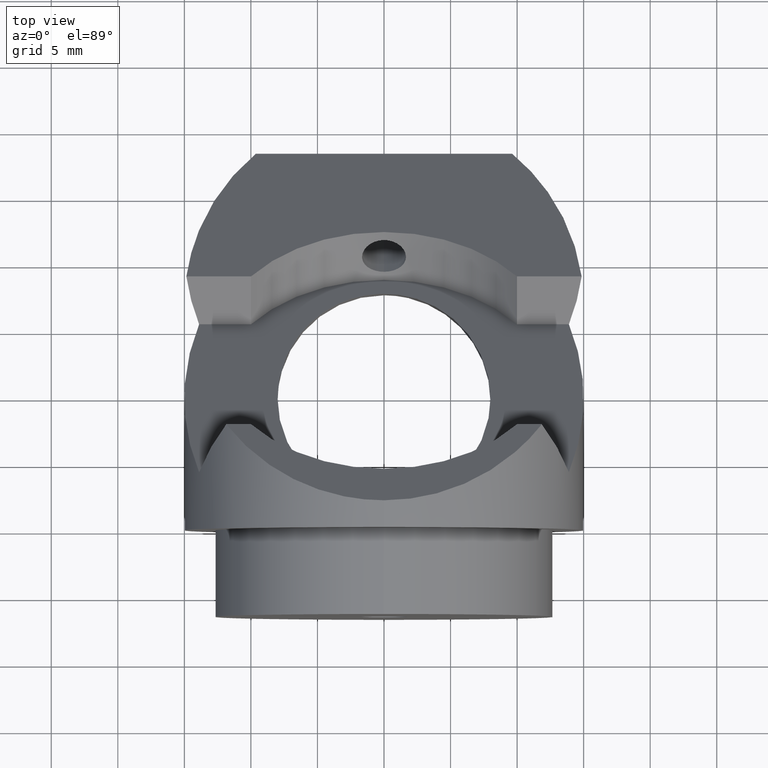
[diagram: clean part render]
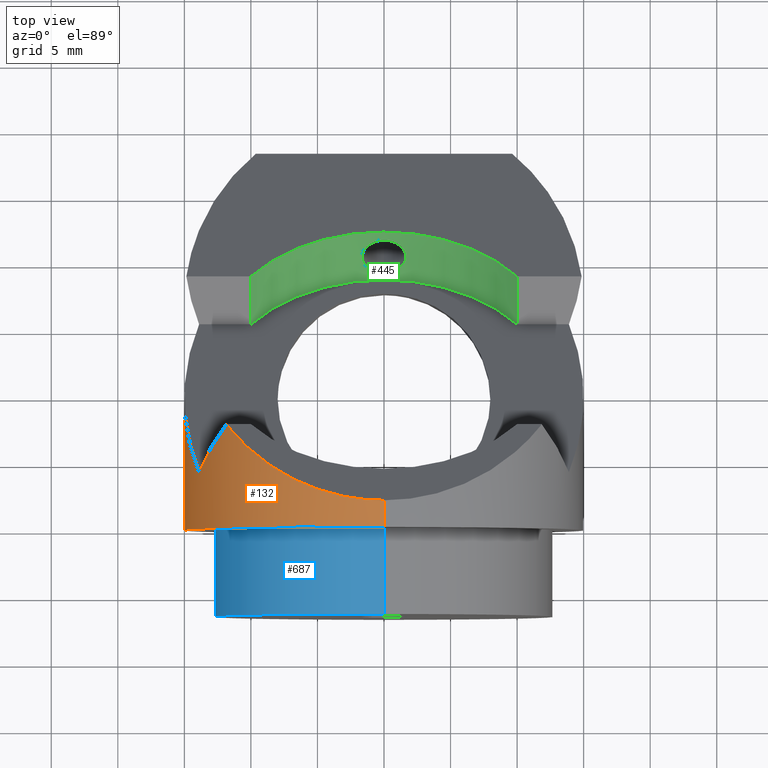
[diagram: same view with three faces highlighted in distinct colors, each labeled with its STEP entity id]
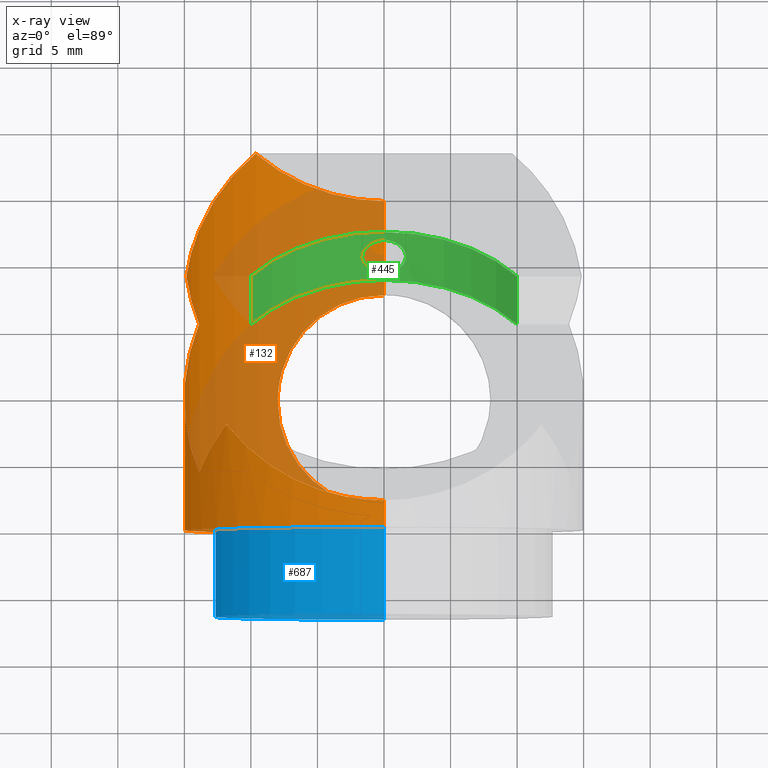
[diagram: x-ray of the same camera — body ghosted, the three highlighted faces saturated]
A machine part, top view with three faces highlighted in distinct colors.
The next image is the same camera in x-ray (body ghosted, the three faces saturated) — at least one of them is partly hidden behind the body in this view.
Their STEP definitions:

[orange] entity #132 — the highlighted cylindrical surface (partial cylindrical patch) has radius 15 mm, axis along (-0, -1, -0).
#6 = CARTESIAN_POINT ( 'NONE',  ( -0.5402986801607242400, 17.92893218813432600, -15.00000000000000000 ) ) ;
#14 = EDGE_CURVE ( 'NONE', #966, #573, #567, .T. ) ;
#17 = CARTESIAN_POINT ( 'NONE',  ( -1.069685864931536600, 17.87477445671359500, -14.97091841634727900 ) ) ;
#19 = CARTESIAN_POINT ( 'NONE',  ( -2.763774181441814900E-024, 1.928932188134118200, -15.00000000000000000 ) ) ;
#23 = CARTESIAN_POINT ( 'NONE',  ( -4.897071439797034700, 3.581471149409963100, -14.18533946087025700 ) ) ;
#24 =( BOUNDED_CURVE ( )  B_SPLINE_CURVE ( 3, ( #495, #734, #29, #100 ),
 .UNSPECIFIED., .F., .F. ) 
 B_SPLINE_CURVE_WITH_KNOTS ( ( 4, 4 ),
 ( 1.957484952950715000, 2.230428053079148000 ),
 .UNSPECIFIED. ) 
 CURVE ( )  GEOMETRIC_REPRESENTATION_ITEM ( )  RATIONAL_B_SPLINE_CURVE ( ( 1.000000000000000000, 0.9938014680113467200, 0.9938014680113467200, 1.000000000000000000 ) ) 
 REPRESENTATION_ITEM ( '' )  );
#25 = CARTESIAN_POINT ( 'NONE',  ( -14.84924240491746000, 19.12132034355941500, -2.121320343559593500 ) ) ;
#26 = CARTESIAN_POINT ( 'NONE',  ( -8.000000000000103000, 9.661999923300925300, -12.68857754044945800 ) ) ;
#29 = CARTESIAN_POINT ( 'NONE',  ( -12.69220912968829600, 6.725828052043423700, 8.110604362894134700 ) ) ;
#35 = ORIENTED_EDGE ( 'NONE', *, *, #640, .T. ) ;
#39 = CARTESIAN_POINT ( 'NONE',  ( -4.720855478036189500, 2.000000000000001800, 15.00000000000000000 ) ) ;
#57 = CARTESIAN_POINT ( 'NONE',  ( 1.836970198721029600E-015, 0.0000000000000000000, 15.00000000000000000 ) ) ;
#70 = CARTESIAN_POINT ( 'NONE',  ( -13.89244398944966500, 4.272077938641865000, 5.656854249492601700 ) ) ;
#73 = CARTESIAN_POINT ( 'NONE',  ( -2.622107537922459700, 17.50517929154395300, -14.77729834388254900 ) ) ;
#84 = LINE ( 'NONE', #991, #812 ) ;
#85 = CARTESIAN_POINT ( 'NONE',  ( -3.588620696134561200, 17.09808622551051400, -14.57277584346299200 ) ) ;
#87 = CARTESIAN_POINT ( 'NONE',  ( -7.724543757968519700, 12.02696702556041700, -12.85844599344674100 ) ) ;
#92 = CARTESIAN_POINT ( 'NONE',  ( -7.986389873771929400, 9.391158058453209300, -12.69718802926070500 ) ) ;
#94 = CARTESIAN_POINT ( 'NONE',  ( -6.336600760920594800, 5.038766614149111000, -13.59704935660367800 ) ) ;
#100 = CARTESIAN_POINT ( 'NONE',  ( -11.85326959112950500, 7.807611844574621400, 9.192388155425320000 ) ) ;
#102 = EDGE_CURVE ( 'NONE', #399, #656, #185, .T. ) ;
#115 = ORIENTED_EDGE ( 'NONE', *, *, #102, .F. ) ;
#119 = CARTESIAN_POINT ( 'NONE',  ( -13.89244398944976300, 15.58578643762660000, -5.656854249492376100 ) ) ;
#120 =( BOUNDED_CURVE ( )  B_SPLINE_CURVE ( 3, ( #167, #320, #248, #25 ),
 .UNSPECIFIED., .F., .F. ) 
 B_SPLINE_CURVE_WITH_KNOTS ( ( 4, 4 ),
 ( 3.838755787232007100, 4.570491925780528300 ),
 .UNSPECIFIED. ) 
 CURVE ( )  GEOMETRIC_REPRESENTATION_ITEM ( )  RATIONAL_B_SPLINE_CURVE ( ( 1.000000000000000000, 0.9558757016912029500, 0.9558757016912029500, 1.000000000000000000 ) ) 
 REPRESENTATION_ITEM ( '' )  );
#132 = ADVANCED_FACE ( 'NONE', ( #584 ), #283, .T. ) ;
#143 = CARTESIAN_POINT ( 'NONE',  ( -6.020570510678419800, 15.20330653662835600, -13.73990089893911700 ) ) ;
#147 = CARTESIAN_POINT ( 'NONE',  ( -15.38829925571960500, 7.945689558534887500, 1.983242629599501200 ) ) ;
#160 = CARTESIAN_POINT ( 'NONE',  ( -7.177967971487818000, 13.49920839242508400, -13.17307734203847900 ) ) ;
#162 = CARTESIAN_POINT ( 'NONE',  ( -3.576409944130032800, 2.753947597043895400, -14.57566637414122600 ) ) ;
#167 = CARTESIAN_POINT ( 'NONE',  ( -9.630680142128881000, 28.49999999999988300, -11.50000000000015800 ) ) ;
#170 = CARTESIAN_POINT ( 'NONE',  ( -7.892611762494417400, 8.596062843617303900, -12.75580203211171000 ) ) ;
#172 = CARTESIAN_POINT ( 'NONE',  ( -7.787422227111571600, 8.078009126603351600, -12.82029098626778900 ) ) ;
#176 = CARTESIAN_POINT ( 'NONE',  ( -5.294259466463342000, 3.909587927322553600, -14.04006382546804600 ) ) ;
#185 =( BOUNDED_CURVE ( )  B_SPLINE_CURVE ( 3, ( #672, #976, #516, #119 ),
 .UNSPECIFIED., .F., .F. ) 
 B_SPLINE_CURVE_WITH_KNOTS ( ( 4, 4 ),
 ( 4.854286034988851000, 5.099077606540491900 ),
 .UNSPECIFIED. ) 
 CURVE ( )  GEOMETRIC_REPRESENTATION_ITEM ( )  RATIONAL_B_SPLINE_CURVE ( ( 1.000000000000000000, 0.9950126547132646100, 0.9950126547132646100, 1.000000000000000000 ) ) 
 REPRESENTATION_ITEM ( '' )  );
#186 = VECTOR ( 'NONE', #939, 1000.000000000000000 ) ;
#193 = VERTEX_POINT ( 'NONE', #979 ) ;
#225 = CARTESIAN_POINT ( 'NONE',  ( -7.790209122528918500, 11.76812732826659400, -12.81859580687657800 ) ) ;
#230 = CARTESIAN_POINT ( 'NONE',  ( 0.0000000000000000000, 25.00000000000000700, -15.00000000000000000 ) ) ;
#239 = CARTESIAN_POINT ( 'NONE',  ( -9.630680142128881000, 28.49999999999988300, -11.50000000000015800 ) ) ;
#244 = CARTESIAN_POINT ( 'NONE',  ( -1.060651640871473000, 1.981678697479633700, -14.97166650715893400 ) ) ;
#248 = CARTESIAN_POINT ( 'NONE',  ( -14.31993811834982600, 22.82645034953319300, -5.826450349533404300 ) ) ;
#249 = CARTESIAN_POINT ( 'NONE',  ( -7.566662152314264300, 7.318334476416273700, -12.95198035539508700 ) ) ;
#250 = CIRCLE ( 'NONE', #566, 15.00000000000000000 ) ;
#259 = EDGE_CURVE ( 'NONE', #915, #366, #250, .T. ) ;
#283 = CYLINDRICAL_SURFACE ( 'NONE', #766, 15.00000000000000000 ) ;
#292 = CARTESIAN_POINT ( 'NONE',  ( 1.836970198721029600E-015, 2.000000000000001800, 15.00000000000000000 ) ) ;
#293 = CARTESIAN_POINT ( 'NONE',  ( 1.836970198721029600E-015, -7.664944013781219000, 15.00000000000000000 ) ) ;
#297 = CARTESIAN_POINT ( 'NONE',  ( -8.000000000000104800, 10.46358031276772700, -12.68857754044945800 ) ) ;
#300 = CARTESIAN_POINT ( 'NONE',  ( -3.558319546696726100, 25.00000000000001100, -15.00000000000000200 ) ) ;
#311 = EDGE_CURVE ( 'NONE', #559, #966, #24, .T. ) ;
#313 = CARTESIAN_POINT ( 'NONE',  ( -6.502563963584512900, 14.59619933070975000, -13.51822400401877500 ) ) ;
#314 = ORIENTED_EDGE ( 'NONE', *, *, #869, .F. ) ;
#316 = CARTESIAN_POINT ( 'NONE',  ( -2.610089792680260000, 2.362074172449627700, -14.77338439190168100 ) ) ;
#320 = CARTESIAN_POINT ( 'NONE',  ( -12.50011912809284600, 26.09698703815879700, -9.096987038159044300 ) ) ;
#326 = CARTESIAN_POINT ( 'NONE',  ( -14.84924240491746000, 19.12132034355941500, -2.121320343559593500 ) ) ;
#331 = ORIENTED_EDGE ( 'NONE', *, *, #712, .F. ) ;
#332 = ORIENTED_EDGE ( 'NONE', *, *, #530, .F. ) ;
#337 = CARTESIAN_POINT ( 'NONE',  ( -6.492218660363217700, 5.247279350077104900, -13.52320181177037400 ) ) ;
#339 = ORIENTED_EDGE ( 'NONE', *, *, #441, .T. ) ;
#344 = ORIENTED_EDGE ( 'NONE', *, *, #259, .F. ) ;
#345 = VERTEX_POINT ( 'NONE', #578 ) ;
#366 = VERTEX_POINT ( 'NONE', #651 ) ;
#399 = VERTEX_POINT ( 'NONE', #326 ) ;
#414 = CARTESIAN_POINT ( 'NONE',  ( -5.836924079388349000, 4.452095560247782300, -13.81913387922050200 ) ) ;
#427 = CARTESIAN_POINT ( 'NONE',  ( 1.836970198721029600E-015, 2.000000000000001800, 15.00000000000000000 ) ) ;
#441 = EDGE_CURVE ( 'NONE', #814, #792, #820, .T. ) ;
#456 = CARTESIAN_POINT ( 'NONE',  ( -11.85326959112950500, 7.807611844574621400, 9.192388155425320000 ) ) ;
#457 = CARTESIAN_POINT ( 'NONE',  ( -13.89244398944976300, 15.58578643762660000, -5.656854249492376100 ) ) ;
#458 = LINE ( 'NONE', #293, #186 ) ;
#459 = CARTESIAN_POINT ( 'NONE',  ( -6.347265946884006900, 14.80525344925208700, -13.59206978301116200 ) ) ;
#470 = CARTESIAN_POINT ( 'NONE',  ( -5.297685044698814000, 15.92900575000930100, -14.03492335211974100 ) ) ;
#479 = CARTESIAN_POINT ( 'NONE',  ( -7.479163992759115600, 12.78018280200077300, -13.00289981827798200 ) ) ;
#480 = CARTESIAN_POINT ( 'NONE',  ( -0.5330492255742383900, 1.928932188134117900, -15.00000000000000700 ) ) ;
#484 = CARTESIAN_POINT ( 'NONE',  ( -8.000000000000104800, 9.928932188134222500, -12.68857754044945300 ) ) ;
#495 = CARTESIAN_POINT ( 'NONE',  ( -13.89244398944966500, 4.272077938641865000, 5.656854249492601700 ) ) ;
#502 = CARTESIAN_POINT ( 'NONE',  ( -8.960207192477884800, 4.077106999113070200, 12.92289300088691000 ) ) ;
#504 = VECTOR ( 'NONE', #623, 1000.000000000000000 ) ;
#515 = VERTEX_POINT ( 'NONE', #239 ) ;
#516 = CARTESIAN_POINT ( 'NONE',  ( -14.35518363273349100, 16.72221037440975200, -4.520430312709232000 ) ) ;
#530 = EDGE_CURVE ( 'NONE', #656, #559, #634, .T. ) ;
#532 = ORIENTED_EDGE ( 'NONE', *, *, #653, .T. ) ;
#533 = CARTESIAN_POINT ( 'NONE',  ( -2.763774181441814900E-024, 1.928932188134118200, -15.00000000000000000 ) ) ;
#556 = DIRECTION ( 'NONE',  ( -0.0000000000000000000, -1.000000000000000000, -0.0000000000000000000 ) ) ;
#559 = VERTEX_POINT ( 'NONE', #680 ) ;
#565 = CARTESIAN_POINT ( 'NONE',  ( -13.89244398944976300, 15.58578643762660000, -5.656854249492376100 ) ) ;
#566 = AXIS2_PLACEMENT_3D ( 'NONE', #934, #556, #1006 ) ;
#567 =( BOUNDED_CURVE ( )  B_SPLINE_CURVE ( 3, ( #900, #502, #39, #427 ),
 .UNSPECIFIED., .F., .F. ) 
 B_SPLINE_CURVE_WITH_KNOTS ( ( 4, 4 ),
 ( 5.372020706668941200, 6.283185307179586200 ),
 .UNSPECIFIED. ) 
 CURVE ( )  GEOMETRIC_REPRESENTATION_ITEM ( )  RATIONAL_B_SPLINE_CURVE ( ( 1.000000000000000000, 0.9320033179247989600, 0.9320033179247989600, 1.000000000000000000 ) ) 
 REPRESENTATION_ITEM ( '' )  );
#573 = VERTEX_POINT ( 'NONE', #292 ) ;
#574 = CARTESIAN_POINT ( 'NONE',  ( -7.932593759793550500, 8.858614257552190500, -12.73086655763748500 ) ) ;
#578 = CARTESIAN_POINT ( 'NONE',  ( 0.0000000000000000000, 25.00000000000000700, -15.00000000000000000 ) ) ;
#584 = FACE_OUTER_BOUND ( 'NONE', #793, .T. ) ;
#588 = ORIENTED_EDGE ( 'NONE', *, *, #595, .T. ) ;
#595 = EDGE_CURVE ( 'NONE', #792, #366, #84, .T. ) ;
#601 = DIRECTION ( 'NONE',  ( -0.0000000000000000000, -1.000000000000000000, -0.0000000000000000000 ) ) ;
#617 = CARTESIAN_POINT ( 'NONE',  ( -4.692197194411639800, 16.41360743539968700, -14.24901242870442900 ) ) ;
#619 = DIRECTION ( 'NONE',  ( -0.0000000000000000000, -1.000000000000000000, -0.0000000000000000000 ) ) ;
#623 = DIRECTION ( 'NONE',  ( -0.0000000000000000000, -1.000000000000000000, -0.0000000000000000000 ) ) ;
#630 = CARTESIAN_POINT ( 'NONE',  ( -4.900731299555951100, 16.25737451704031900, -14.17841221936554600 ) ) ;
#634 =( BOUNDED_CURVE ( )  B_SPLINE_CURVE ( 3, ( #457, #873, #147, #70 ),
 .UNSPECIFIED., .F., .T. ) 
 B_SPLINE_CURVE_WITH_KNOTS ( ( 4, 4 ),
 ( 4.325700354228887400, 5.099077606540507900 ),
 .UNSPECIFIED. ) 
 CURVE ( )  GEOMETRIC_REPRESENTATION_ITEM ( )  RATIONAL_B_SPLINE_CURVE ( ( 1.000000000000000000, 0.9507752884199890400, 0.9507752884199890400, 1.000000000000000000 ) ) 
 REPRESENTATION_ITEM ( '' )  );
#636 = CARTESIAN_POINT ( 'NONE',  ( -1.843974823227151300, 2.139791552717057700, -14.88854263611860200 ) ) ;
#638 = CARTESIAN_POINT ( 'NONE',  ( -5.487113113989489800, 15.75620985565317300, -13.96172230258995500 ) ) ;
#639 = ORIENTED_EDGE ( 'NONE', *, *, #879, .F. ) ;
#640 = EDGE_CURVE ( 'NONE', #345, #193, #697, .T. ) ;
#651 = CARTESIAN_POINT ( 'NONE',  ( 0.0000000000000000000, 0.0000000000000000000, -15.00000000000000000 ) ) ;
#653 = EDGE_CURVE ( 'NONE', #193, #814, #904, .T. ) ;
#656 = VERTEX_POINT ( 'NONE', #565 ) ;
#672 = CARTESIAN_POINT ( 'NONE',  ( -14.84924240491746000, 19.12132034355941500, -2.121320343559593500 ) ) ;
#679 = ORIENTED_EDGE ( 'NONE', *, *, #311, .F. ) ;
#680 = CARTESIAN_POINT ( 'NONE',  ( -13.89244398944966500, 4.272077938641865000, 5.656854249492601700 ) ) ;
#697 = LINE ( 'NONE', #881, #504 ) ;
#704 = CARTESIAN_POINT ( 'NONE',  ( -4.045133338712337200, 16.85047873258502400, -14.45133817646340500 ) ) ;
#706 = CARTESIAN_POINT ( 'NONE',  ( -8.000000000000104800, 9.928932188134222500, -12.68857754044945300 ) ) ;
#710 = CARTESIAN_POINT ( 'NONE',  ( -2.108082992927836000, 17.66434577124051200, -14.86030323289160800 ) ) ;
#712 = EDGE_CURVE ( 'NONE', #515, #399, #120, .T. ) ;
#721 = CARTESIAN_POINT ( 'NONE',  ( -7.568643659071402600, 12.53391963720620700, -12.95082402000563900 ) ) ;
#728 = CARTESIAN_POINT ( 'NONE',  ( -7.722212791776017900, 7.822507221936043600, -12.85984451120371100 ) ) ;
#734 = CARTESIAN_POINT ( 'NONE',  ( -13.37617350418275600, 5.539966147114007800, 6.924742457964731200 ) ) ;
#757 = CARTESIAN_POINT ( 'NONE',  ( 0.0000000000000000000, -7.664944013781219000, 0.0000000000000000000 ) ) ;
#766 = AXIS2_PLACEMENT_3D ( 'NONE', #757, #601, #828 ) ;
#782 = CARTESIAN_POINT ( 'NONE',  ( -7.946950181954490800, 10.99004978312811300, -12.72246082079875300 ) ) ;
#792 = VERTEX_POINT ( 'NONE', #533 ) ;
#793 = EDGE_LOOP ( 'NONE', ( #639, #952, #679, #332, #115, #331, #314, #35, #532, #339, #588, #344 ) ) ;
#801 = CARTESIAN_POINT ( 'NONE',  ( -2.856254063075164900, 2.451660578791558200, -14.72759322876118800 ) ) ;
#802 = CARTESIAN_POINT ( 'NONE',  ( 1.312247599340864500E-016, 17.92893218813432600, -15.00000000000000000 ) ) ;
#808 = CARTESIAN_POINT ( 'NONE',  ( -7.475805299697055000, 7.068707276263065600, -13.00484229207788900 ) ) ;
#811 = CARTESIAN_POINT ( 'NONE',  ( -6.009205169887722200, 4.641618903441958800, -13.74487954241180900 ) ) ;
#812 = VECTOR ( 'NONE', #619, 1000.000000000000000 ) ;
#814 = VERTEX_POINT ( 'NONE', #706 ) ;
#820 = B_SPLINE_CURVE_WITH_KNOTS ( 'NONE', 3,
 ( #484, #26, #92, #574, #170, #172, #728, #249, #808, #889, #959, #337, #94, #811, #414, #176, #23, #954, #162, #801, #316, #883, #636, #244, #480, #19 ),
 .UNSPECIFIED., .F., .F.,
 ( 4, 2, 2, 2, 2, 2, 2, 2, 2, 2, 2, 2, 4 ),
 ( 0.01276757034206472600, 0.01356437395709705500, 0.01436117757212938700, 0.01515798118716171600, 0.01595478480219404700, 0.01754839203225871300, 0.01834519564729104500, 0.01914199926232337500, 0.02073560649238803700, 0.02232921372245270200, 0.02312601733748503200, 0.02392282095251736400, 0.02551642818258203000 ),
 .UNSPECIFIED. ) ;
#828 = DIRECTION ( 'NONE',  ( 0.0000000000000000000, 0.0000000000000000000, -1.000000000000000000 ) ) ;
#854 = CARTESIAN_POINT ( 'NONE',  ( -6.933866580047388900, 13.95241040639131600, -13.30505045249553400 ) ) ;
#861 = CARTESIAN_POINT ( 'NONE',  ( -8.000000000000104800, 9.928932188134222500, -12.68857754044945300 ) ) ;
#864 = CARTESIAN_POINT ( 'NONE',  ( -9.630680142128881000, 28.49999999999988300, -11.50000000000015800 ) ) ;
#869 = EDGE_CURVE ( 'NONE', #345, #515, #870, .T. ) ;
#870 =( BOUNDED_CURVE ( )  B_SPLINE_CURVE ( 3, ( #230, #300, #946, #864 ),
 .UNSPECIFIED., .F., .T. ) 
 B_SPLINE_CURVE_WITH_KNOTS ( ( 4, 4 ),
 ( 0.0000000000000000000, 0.6971631336422135000 ),
 .UNSPECIFIED. ) 
 CURVE ( )  GEOMETRIC_REPRESENTATION_ITEM ( )  RATIONAL_B_SPLINE_CURVE ( ( 1.000000000000000000, 0.9599054302165213000, 0.9599054302165213000, 1.000000000000000000 ) ) 
 REPRESENTATION_ITEM ( '' )  );
#873 = CARTESIAN_POINT ( 'NONE',  ( -15.38829925571963400, 11.91217481773356600, -1.983242629599261800 ) ) ;
#879 = EDGE_CURVE ( 'NONE', #573, #915, #458, .T. ) ;
#881 = CARTESIAN_POINT ( 'NONE',  ( 0.0000000000000000000, -7.664944013781219000, -15.00000000000000000 ) ) ;
#883 = CARTESIAN_POINT ( 'NONE',  ( -2.104764605822110600, 2.206246456508055100, -14.85380156965941500 ) ) ;
#889 = CARTESIAN_POINT ( 'NONE',  ( -7.171281574116763500, 6.344671275952157100, -13.17676258676304000 ) ) ;
#900 = CARTESIAN_POINT ( 'NONE',  ( -11.85326959112950500, 7.807611844574621400, 9.192388155425320000 ) ) ;
#904 = B_SPLINE_CURVE_WITH_KNOTS ( 'NONE', 3,
 ( #802, #6, #17, #710, #73, #85, #704, #617, #630, #470, #638, #935, #143, #459, #313, #854, #160, #479, #721, #87, #225, #782, #297, #861 ),
 .UNSPECIFIED., .F., .F.,
 ( 4, 2, 2, 2, 2, 2, 2, 2, 2, 2, 2, 4 ),
 ( 1.272160798514105200E-019, 0.001595946292758094200, 0.003191892585516188000, 0.004787838878274282300, 0.005585812024653327900, 0.006383785171032372600, 0.007181758317411418200, 0.007979731463790463000, 0.009575677756548552400, 0.01037365090292759700, 0.01117162404930664000, 0.01276757034206472600 ),
 .UNSPECIFIED. ) ;
#915 = VERTEX_POINT ( 'NONE', #57 ) ;
#934 = CARTESIAN_POINT ( 'NONE',  ( 0.0000000000000000000, 0.0000000000000000000, 0.0000000000000000000 ) ) ;
#935 = CARTESIAN_POINT ( 'NONE',  ( -5.848556111032858800, 15.39335958322153500, -13.81421338319534400 ) ) ;
#939 = DIRECTION ( 'NONE',  ( -0.0000000000000000000, -1.000000000000000000, -0.0000000000000000000 ) ) ;
#946 = CARTESIAN_POINT ( 'NONE',  ( -6.902635156328030600, 26.21539750681843000, -13.78460249318159800 ) ) ;
#952 = ORIENTED_EDGE ( 'NONE', *, *, #14, .F. ) ;
#954 = CARTESIAN_POINT ( 'NONE',  ( -4.032228139331059500, 2.999812001776865700, -14.45497494079410000 ) ) ;
#959 = CARTESIAN_POINT ( 'NONE',  ( -6.925117495538727600, 5.890386237769818400, -13.30963219538147000 ) ) ;
#966 = VERTEX_POINT ( 'NONE', #456 ) ;
#976 = CARTESIAN_POINT ( 'NONE',  ( -14.67571503868612100, 17.90662877993970200, -3.336011907179294400 ) ) ;
#979 = CARTESIAN_POINT ( 'NONE',  ( 1.312247599340864500E-016, 17.92893218813432600, -15.00000000000000000 ) ) ;
#991 = CARTESIAN_POINT ( 'NONE',  ( 0.0000000000000000000, -7.664944013781219000, -15.00000000000000000 ) ) ;
#1006 = DIRECTION ( 'NONE',  ( 0.0000000000000000000, 0.0000000000000000000, -1.000000000000000000 ) ) ;

[blue] entity #687 — the highlighted cylindrical surface (partial cylindrical patch) has radius 12.7 mm, axis along (-0, -1, -0).
#4 = CYLINDRICAL_SURFACE ( 'NONE', #703, 12.70000000000000100 ) ;
#12 = DIRECTION ( 'NONE',  ( 0.0000000000000000000, 0.0000000000000000000, -1.000000000000000000 ) ) ;
#66 = CARTESIAN_POINT ( 'NONE',  ( 1.555301434917138600E-015, -6.500000000000000000, 12.69999999999999900 ) ) ;
#91 = CIRCLE ( 'NONE', #386, 12.70000000000000300 ) ;
#118 = LINE ( 'NONE', #465, #931 ) ;
#123 = ORIENTED_EDGE ( 'NONE', *, *, #914, .F. ) ;
#140 = CARTESIAN_POINT ( 'NONE',  ( 0.0000000000000000000, -6.500000000000000000, 0.0000000000000000000 ) ) ;
#148 = DIRECTION ( 'NONE',  ( -0.0000000000000000000, -1.000000000000000000, -0.0000000000000000000 ) ) ;
#175 = FACE_OUTER_BOUND ( 'NONE', #403, .T. ) ;
#204 = CARTESIAN_POINT ( 'NONE',  ( 0.0000000000000000000, -6.500000000000000000, -12.69999999999999900 ) ) ;
#279 = DIRECTION ( 'NONE',  ( -0.0000000000000000000, -1.000000000000000000, -0.0000000000000000000 ) ) ;
#288 = VERTEX_POINT ( 'NONE', #736 ) ;
#291 = CARTESIAN_POINT ( 'NONE',  ( 0.0000000000000000000, 0.0000000000000000000, 0.0000000000000000000 ) ) ;
#303 = DIRECTION ( 'NONE',  ( -0.0000000000000000000, -1.000000000000000000, -0.0000000000000000000 ) ) ;
#321 = ORIENTED_EDGE ( 'NONE', *, *, #335, .F. ) ;
#335 = EDGE_CURVE ( 'NONE', #912, #507, #764, .T. ) ;
#343 = ORIENTED_EDGE ( 'NONE', *, *, #684, .T. ) ;
#385 = CARTESIAN_POINT ( 'NONE',  ( 0.0000000000000000000, -7.664944013781219000, 0.0000000000000000000 ) ) ;
#386 = AXIS2_PLACEMENT_3D ( 'NONE', #291, #613, #777 ) ;
#390 = CARTESIAN_POINT ( 'NONE',  ( 1.555301434917139000E-015, 0.0000000000000000000, 12.70000000000000500 ) ) ;
#403 = EDGE_LOOP ( 'NONE', ( #321, #983, #343, #123 ) ) ;
#412 = DIRECTION ( 'NONE',  ( -0.0000000000000000000, -1.000000000000000000, -0.0000000000000000000 ) ) ;
#465 = CARTESIAN_POINT ( 'NONE',  ( 0.0000000000000000000, -7.664944013781219000, -12.70000000000000100 ) ) ;
#507 = VERTEX_POINT ( 'NONE', #66 ) ;
#550 = AXIS2_PLACEMENT_3D ( 'NONE', #140, #279, #993 ) ;
#613 = DIRECTION ( 'NONE',  ( -0.0000000000000000000, -1.000000000000000000, -0.0000000000000000000 ) ) ;
#684 = EDGE_CURVE ( 'NONE', #288, #916, #118, .T. ) ;
#687 = ADVANCED_FACE ( 'NONE', ( #175 ), #4, .T. ) ;
#703 = AXIS2_PLACEMENT_3D ( 'NONE', #385, #303, #12 ) ;
#736 = CARTESIAN_POINT ( 'NONE',  ( 0.0000000000000000000, 0.0000000000000000000, -12.70000000000000300 ) ) ;
#744 = VECTOR ( 'NONE', #412, 1000.000000000000000 ) ;
#764 = LINE ( 'NONE', #892, #744 ) ;
#777 = DIRECTION ( 'NONE',  ( 0.0000000000000000000, 0.0000000000000000000, -1.000000000000000000 ) ) ;
#805 = EDGE_CURVE ( 'NONE', #912, #288, #91, .T. ) ;
#892 = CARTESIAN_POINT ( 'NONE',  ( 1.555301434917138600E-015, -7.664944013781219000, 12.70000000000000100 ) ) ;
#912 = VERTEX_POINT ( 'NONE', #390 ) ;
#914 = EDGE_CURVE ( 'NONE', #507, #916, #997, .T. ) ;
#916 = VERTEX_POINT ( 'NONE', #204 ) ;
#931 = VECTOR ( 'NONE', #148, 1000.000000000000000 ) ;
#983 = ORIENTED_EDGE ( 'NONE', *, *, #805, .T. ) ;
#993 = DIRECTION ( 'NONE',  ( 0.0000000000000000000, 0.0000000000000000000, -1.000000000000000000 ) ) ;
#997 = CIRCLE ( 'NONE', #550, 12.69999999999999900 ) ;

[green] entity #445 — the highlighted cylindrical surface (partial cylindrical patch) has radius 12.8 mm, axis along (-0, 0.7071, 0.7071).
#2 = CARTESIAN_POINT ( 'NONE',  ( 1.311714420298593300, 19.98825027054456500, -7.947515701352233300 ) ) ;
#5 = CARTESIAN_POINT ( 'NONE',  ( 2.020667468061644300E-016, 19.58093975133078100, -8.449926035179313300 ) ) ;
#10 = CARTESIAN_POINT ( 'NONE',  ( 1.650076660835920500, 20.74845650597988500, -7.131366858884797800 ) ) ;
#11 = CARTESIAN_POINT ( 'NONE',  ( -9.991996797437542100, 24.26402075175977300, 3.021380064640720500 ) ) ;
#30 = FACE_BOUND ( 'NONE', #667, .T. ) ;
#67 = FACE_OUTER_BOUND ( 'NONE', #395, .T. ) ;
#75 = CARTESIAN_POINT ( 'NONE',  ( 1.597013686507747800, 20.37395918616320500, -7.515485121834515800 ) ) ;
#79 = CARTESIAN_POINT ( 'NONE',  ( 0.8298724051733134000, 19.70991158085957200, -8.285057363462049900 ) ) ;
#80 = CARTESIAN_POINT ( 'NONE',  ( -1.318993213342358300, 21.41741747462396000, -6.518378007554258800 ) ) ;
#105 = CIRCLE ( 'NONE', #354, 12.79999999999999700 ) ;
#106 = B_SPLINE_CURVE_WITH_KNOTS ( 'NONE', 3,
 ( #463, #707, #229, #79, #553, #389, #2, #545, #467, #784, #75, #146, #299, #10, #141, #702, #222, #379, #867, #561, #723, #950, #549, #1007, #394, #795 ),
 .UNSPECIFIED., .F., .F.,
 ( 4, 2, 2, 2, 2, 2, 2, 2, 2, 2, 2, 2, 4 ),
 ( 0.005164023436399831400, 0.005809371263709854100, 0.006454719091019876800, 0.006777393004674886800, 0.007100066918329896000, 0.007422740831984906000, 0.007745414745639916100, 0.008068088659294925200, 0.008390762572949937000, 0.008713436486604945300, 0.009036110400259957100, 0.009681458227569970200, 0.01032680605487998300 ),
 .UNSPECIFIED. ) ;
#107 = ORIENTED_EDGE ( 'NONE', *, *, #606, .F. ) ;
#121 = CARTESIAN_POINT ( 'NONE',  ( -1.089888358436315000, 19.83561851871691000, -8.129838520667693300 ) ) ;
#126 = CARTESIAN_POINT ( 'NONE',  ( -1.431482629913933200, 20.10579485191326300, -7.811715043937474500 ) ) ;
#141 = CARTESIAN_POINT ( 'NONE',  ( 1.639440878530877400, 20.82529502132980100, -7.056502007653557800 ) ) ;
#142 = CARTESIAN_POINT ( 'NONE',  ( 9.991996797437567000, 19.12132034355941100, -2.121320343559590900 ) ) ;
#144 = ORIENTED_EDGE ( 'NONE', *, *, #207, .F. ) ;
#146 = CARTESIAN_POINT ( 'NONE',  ( 1.639123995240978800, 20.51931266854768400, -7.362542571112157900 ) ) ;
#158 = DIRECTION ( 'NONE',  ( 0.0000000000000000000, -0.7071067811865475700, -0.7071067811865474600 ) ) ;
#159 = ORIENTED_EDGE ( 'NONE', *, *, #367, .F. ) ;
#164 = VECTOR ( 'NONE', #224, 1000.000000000000000 ) ;
#166 = DIRECTION ( 'NONE',  ( 0.0000000000000000000, -0.7071067811865475700, 0.7071067811865474600 ) ) ;
#174 = CARTESIAN_POINT ( 'NONE',  ( 0.0000000000000000000, 9.928932188134471200, -5.204170427930421300E-015 ) ) ;
#207 = EDGE_CURVE ( 'NONE', #807, #893, #342, .T. ) ;
#222 = CARTESIAN_POINT ( 'NONE',  ( 1.565907560896366600, 21.05530779494452500, -6.839685013714722900 ) ) ;
#224 = DIRECTION ( 'NONE',  ( -0.0000000000000000000, 0.7071067811865475700, 0.7071067811865474600 ) ) ;
#229 = CARTESIAN_POINT ( 'NONE',  ( 0.4327120237911881200, 19.60748279677126500, -8.415221278467750900 ) ) ;
#235 = CARTESIAN_POINT ( 'NONE',  ( -1.606498968146973700, 20.98275731015395700, -6.905352650931482600 ) ) ;
#240 = VERTEX_POINT ( 'NONE', #142 ) ;
#270 = CARTESIAN_POINT ( 'NONE',  ( -1.565890749206548800, 20.30410487325447400, -7.590891068727108500 ) ) ;
#273 = VERTEX_POINT ( 'NONE', #5 ) ;
#275 = CIRCLE ( 'NONE', #929, 12.80000000000000200 ) ;
#299 = CARTESIAN_POINT ( 'NONE',  ( 1.649922515520851000, 20.59419847902719500, -7.285653223094188400 ) ) ;
#315 = DIRECTION ( 'NONE',  ( -0.0000000000000000000, -0.7071067811865512400, -0.7071067811865439100 ) ) ;
#342 = LINE ( 'NONE', #11, #164 ) ;
#353 = CARTESIAN_POINT ( 'NONE',  ( -0.2171944808076647900, 19.58758333659034500, -8.441295596415715300 ) ) ;
#354 = AXIS2_PLACEMENT_3D ( 'NONE', #174, #819, #576 ) ;
#367 = EDGE_CURVE ( 'NONE', #489, #807, #105, .T. ) ;
#379 = CARTESIAN_POINT ( 'NONE',  ( 1.483227312764743300, 21.20357035005362100, -6.705449175918034600 ) ) ;
#388 = CARTESIAN_POINT ( 'NONE',  ( 9.991996797437542100, 24.26402075175977300, 3.021380064640720500 ) ) ;
#389 = CARTESIAN_POINT ( 'NONE',  ( 1.242041560797283700, 19.93330128005590800, -8.012465895523178000 ) ) ;
#394 = CARTESIAN_POINT ( 'NONE',  ( 0.2182306188372860600, 21.91439212924638000, -6.116473657263717300 ) ) ;
#395 = EDGE_LOOP ( 'NONE', ( #780, #144, #159, #602 ) ) ;
#411 = CARTESIAN_POINT ( 'NONE',  ( -1.597093330749829200, 20.37409227444530700, -7.515337960763427600 ) ) ;
#445 = ADVANCED_FACE ( 'NONE', ( #30, #67 ), #754, .F. ) ;
#446 = B_SPLINE_CURVE_WITH_KNOTS ( 'NONE', 3,
 ( #933, #708, #779, #858, #785, #865, #947, #468, #554, #80, #716, #235, #790, #725, #891, #411, #270, #826, #126, #835, #758, #121, #748, #833, #829, #911, #917, #353, #525, #938 ),
 .UNSPECIFIED., .F., .F.,
 ( 4, 2, 2, 2, 2, 2, 2, 2, 2, 2, 2, 2, 2, 2, 4 ),
 ( 9.808717089261148500E-019, 0.0003227514647749893600, 0.0006455029295499777400, 0.0009682543943249662200, 0.001291005859099954600, 0.001936508788649937200, 0.002582011718199919600, 0.002904763182974909400, 0.003227514647749899600, 0.003550266112524890300, 0.003873017577299878300, 0.004195769042074866400, 0.004518520506849855300, 0.004841271971624843400, 0.005164023436399831400 ),
 .UNSPECIFIED. ) ;
#463 = CARTESIAN_POINT ( 'NONE',  ( 2.020667468061644300E-016, 19.58093975133078100, -8.449926035179313300 ) ) ;
#467 = CARTESIAN_POINT ( 'NONE',  ( 1.482194727616441800, 20.16851580026152000, -7.740674772068374000 ) ) ;
#468 = CARTESIAN_POINT ( 'NONE',  ( -1.006156184848412600, 21.64772317833100200, -6.327578565414692800 ) ) ;
#487 = VECTOR ( 'NONE', #158, 1000.000000000000000 ) ;
#489 = VERTEX_POINT ( 'NONE', #1005 ) ;
#525 = CARTESIAN_POINT ( 'NONE',  ( -0.1077439510294165600, 19.58093975133078500, -8.449926035179315100 ) ) ;
#538 = EDGE_CURVE ( 'NONE', #998, #273, #446, .T. ) ;
#545 = CARTESIAN_POINT ( 'NONE',  ( 1.431456507603681100, 20.10574165044259200, -7.811773497184845800 ) ) ;
#546 = CARTESIAN_POINT ( 'NONE',  ( -9.991996797437570500, 19.12132034355947500, -2.121320343559533600 ) ) ;
#549 = CARTESIAN_POINT ( 'NONE',  ( 0.8318350197162491800, 21.74862382037950700, -6.246160621963749500 ) ) ;
#553 = CARTESIAN_POINT ( 'NONE',  ( 1.013759983874983600, 19.78686205123389300, -8.188435176968951600 ) ) ;
#554 = CARTESIAN_POINT ( 'NONE',  ( -1.090952623023561600, 21.59349530313118500, -6.371825041162840500 ) ) ;
#561 = CARTESIAN_POINT ( 'NONE',  ( 1.313006418678806400, 21.41070317253326700, -6.524874048422951500 ) ) ;
#564 = DIRECTION ( 'NONE',  ( -0.0000000000000000000, 0.7071067811865475700, 0.7071067811865474600 ) ) ;
#569 = CARTESIAN_POINT ( 'NONE',  ( 0.0000000000000000000, 18.60716650226751100, 8.678234314133032300 ) ) ;
#576 = DIRECTION ( 'NONE',  ( 0.0000000000000000000, -0.7071067811865473500, 0.7071067811865475700 ) ) ;
#602 = ORIENTED_EDGE ( 'NONE', *, *, #797, .F. ) ;
#606 = EDGE_CURVE ( 'NONE', #273, #998, #106, .T. ) ;
#615 = CARTESIAN_POINT ( 'NONE',  ( 8.143433295540134700E-016, 21.91439212924638000, -6.116473657263717300 ) ) ;
#635 = CARTESIAN_POINT ( 'NONE',  ( 0.0000000000000000000, 13.46446609406717900, 3.535533905932700900 ) ) ;
#659 = LINE ( 'NONE', #388, #487 ) ;
#667 = EDGE_LOOP ( 'NONE', ( #813, #107 ) ) ;
#702 = CARTESIAN_POINT ( 'NONE',  ( 1.597618122871928600, 20.97830645448435000, -6.911030001069219600 ) ) ;
#707 = CARTESIAN_POINT ( 'NONE',  ( 0.2154361243599816600, 19.58093975133078100, -8.449926035179315100 ) ) ;
#708 = CARTESIAN_POINT ( 'NONE',  ( -0.1091415340810474900, 21.91439212924638700, -6.116473657263715500 ) ) ;
#716 = CARTESIAN_POINT ( 'NONE',  ( -1.441882653184338700, 21.27747047676988100, -6.638559670142223400 ) ) ;
#723 = CARTESIAN_POINT ( 'NONE',  ( 1.243476105317582700, 21.47567242709661500, -6.469895613758078300 ) ) ;
#725 = CARTESIAN_POINT ( 'NONE',  ( -1.650039644395508300, 20.59639238870538600, -7.283437781063911500 ) ) ;
#745 = EDGE_CURVE ( 'NONE', #893, #240, #275, .T. ) ;
#748 = CARTESIAN_POINT ( 'NONE',  ( -1.006649876771450000, 19.79230424454650700, -8.182939077094934200 ) ) ;
#754 = CYLINDRICAL_SURFACE ( 'NONE', #974, 12.79999999999999900 ) ;
#758 = CARTESIAN_POINT ( 'NONE',  ( -1.243789232165843700, 19.93450205208856500, -8.011031332425050200 ) ) ;
#771 = CARTESIAN_POINT ( 'NONE',  ( -9.991996797437581200, 15.58578643762672100, -5.656854249492256200 ) ) ;
#779 = CARTESIAN_POINT ( 'NONE',  ( -0.2164364814142219800, 21.90582428194318600, -6.123069138966331000 ) ) ;
#780 = ORIENTED_EDGE ( 'NONE', *, *, #745, .F. ) ;
#784 = CARTESIAN_POINT ( 'NONE',  ( 1.565194404010169500, 20.30272204610661600, -7.592395795607420600 ) ) ;
#785 = CARTESIAN_POINT ( 'NONE',  ( -0.5323533903858149700, 21.84708795214737600, -6.168668302561602700 ) ) ;
#790 = CARTESIAN_POINT ( 'NONE',  ( -1.649920374222020500, 20.82496212511111000, -7.054889970657980000 ) ) ;
#795 = CARTESIAN_POINT ( 'NONE',  ( 8.143433295540134700E-016, 21.91439212924638000, -6.116473657263717300 ) ) ;
#797 = EDGE_CURVE ( 'NONE', #240, #489, #659, .T. ) ;
#807 = VERTEX_POINT ( 'NONE', #771 ) ;
#813 = ORIENTED_EDGE ( 'NONE', *, *, #538, .F. ) ;
#819 = DIRECTION ( 'NONE',  ( -0.0000000000000000000, 0.7071067811865475700, 0.7071067811865474600 ) ) ;
#826 = CARTESIAN_POINT ( 'NONE',  ( -1.483123635646964100, 20.16976591203623300, -7.739270921148850000 ) ) ;
#829 = CARTESIAN_POINT ( 'NONE',  ( -0.7315088425806458600, 19.68455964303261400, -8.317274676480435500 ) ) ;
#833 = CARTESIAN_POINT ( 'NONE',  ( -0.8280378696839848500, 19.71690256374372700, -8.276490315174847000 ) ) ;
#835 = CARTESIAN_POINT ( 'NONE',  ( -1.312066197753474200, 19.98856795281990300, -7.947145668193224200 ) ) ;
#858 = CARTESIAN_POINT ( 'NONE',  ( -0.4274911123480993300, 21.87237771859857800, -6.149005625381533100 ) ) ;
#865 = CARTESIAN_POINT ( 'NONE',  ( -0.7321346300745352800, 21.78149845907002900, -6.220285270717212700 ) ) ;
#867 = CARTESIAN_POINT ( 'NONE',  ( 1.432620822213271000, 21.27472982928068700, -6.642599513924316100 ) ) ;
#891 = CARTESIAN_POINT ( 'NONE',  ( -1.639280064907584500, 20.51999399531406000, -7.361832835490218100 ) ) ;
#893 = VERTEX_POINT ( 'NONE', #546 ) ;
#911 = CARTESIAN_POINT ( 'NONE',  ( -0.5317433833342579700, 19.63300701572282800, -8.382785037310686200 ) ) ;
#917 = CARTESIAN_POINT ( 'NONE',  ( -0.4288771354868592400, 19.61368755319056900, -8.407633859628608900 ) ) ;
#929 = AXIS2_PLACEMENT_3D ( 'NONE', #635, #315, #953 ) ;
#933 = CARTESIAN_POINT ( 'NONE',  ( 8.143433295540134700E-016, 21.91439212924638000, -6.116473657263717300 ) ) ;
#938 = CARTESIAN_POINT ( 'NONE',  ( 2.020667468061644300E-016, 19.58093975133078100, -8.449926035179313300 ) ) ;
#947 = CARTESIAN_POINT ( 'NONE',  ( -0.8268695402695400700, 21.74150836194768700, -6.251994903327188900 ) ) ;
#950 = CARTESIAN_POINT ( 'NONE',  ( 1.015630962739837700, 21.65176180174410400, -6.323320111168492900 ) ) ;
#953 = DIRECTION ( 'NONE',  ( 1.776356839400250300E-015, -0.7071067811865438000, 0.7071067811865512400 ) ) ;
#974 = AXIS2_PLACEMENT_3D ( 'NONE', #569, #564, #166 ) ;
#998 = VERTEX_POINT ( 'NONE', #615 ) ;
#1005 = CARTESIAN_POINT ( 'NONE',  ( 9.991996797437581200, 15.58578643762672100, -5.656854249492256200 ) ) ;
#1007 = CARTESIAN_POINT ( 'NONE',  ( 0.4350393424535806100, 21.87917828580113900, -6.143410199831316200 ) ) ;